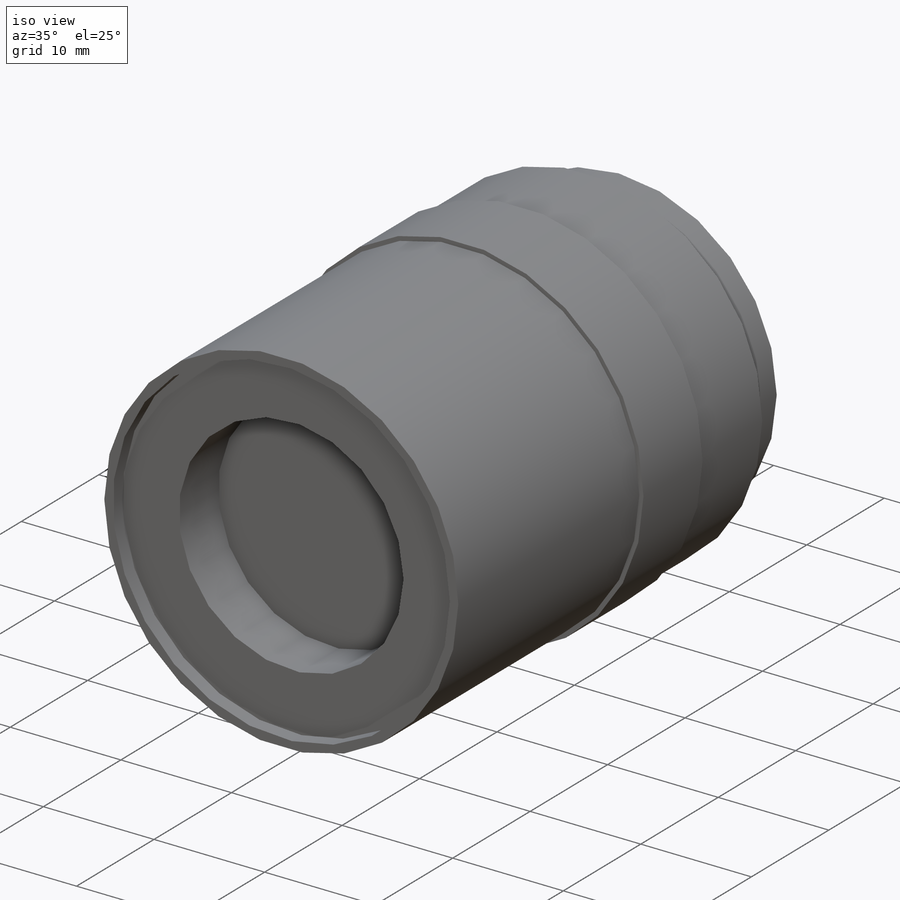
[diagram: iso view]
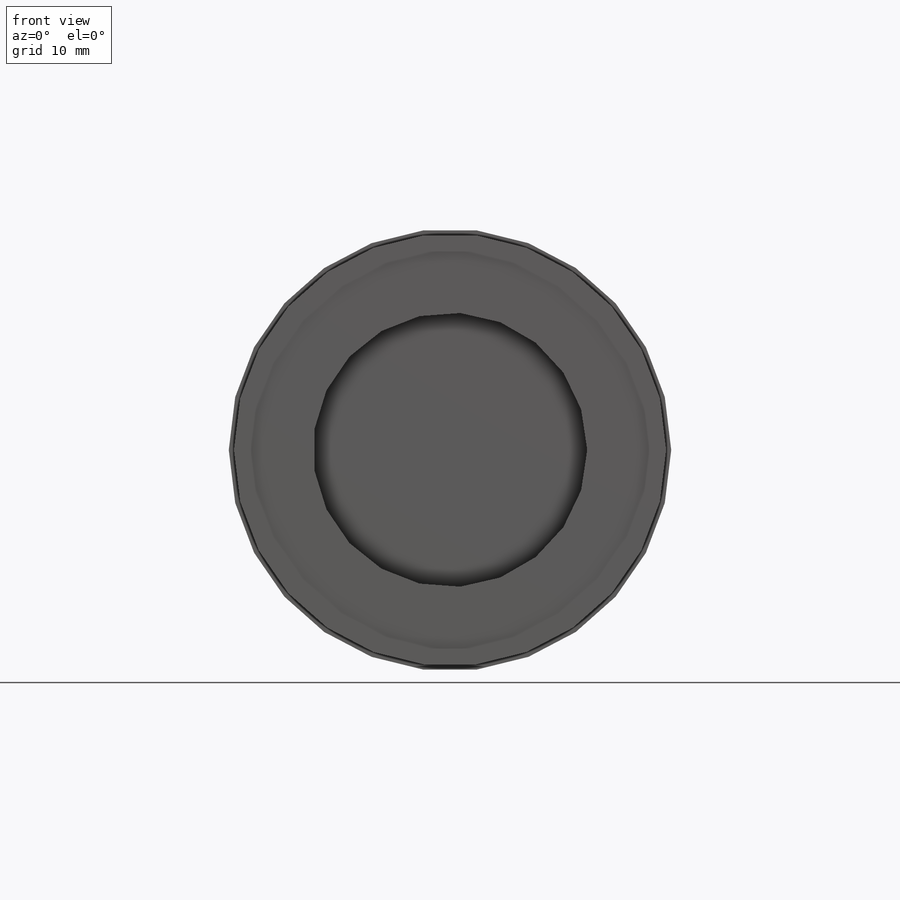
[diagram: front view]
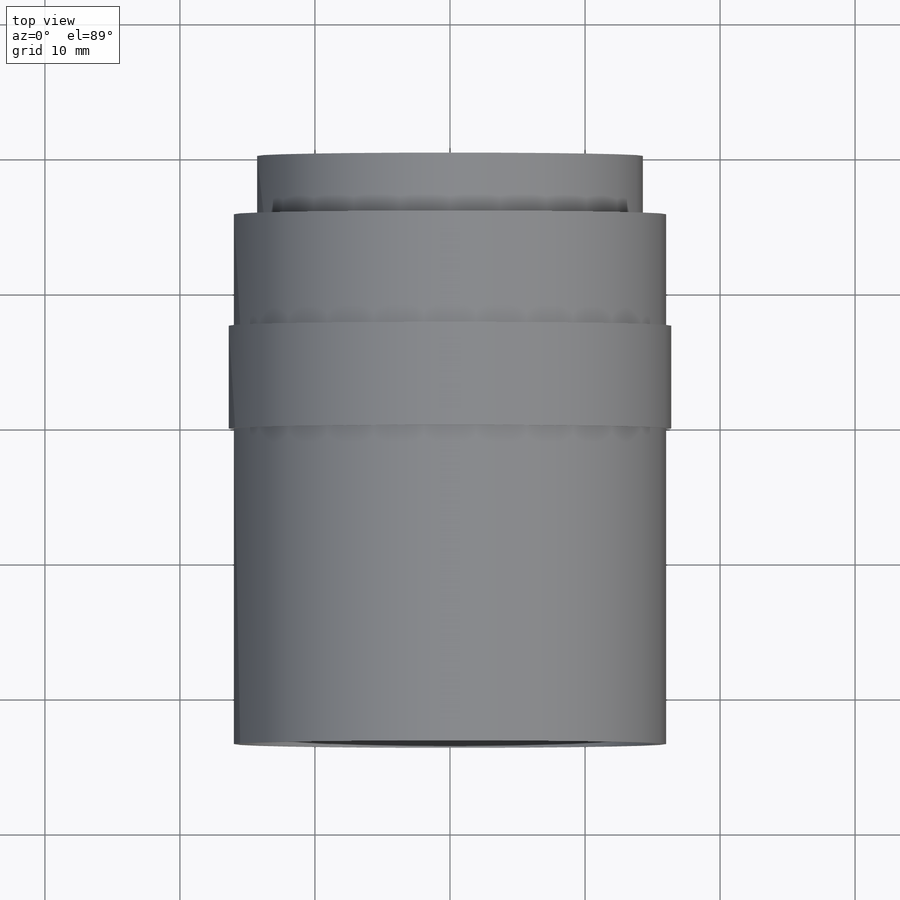
[diagram: top view]
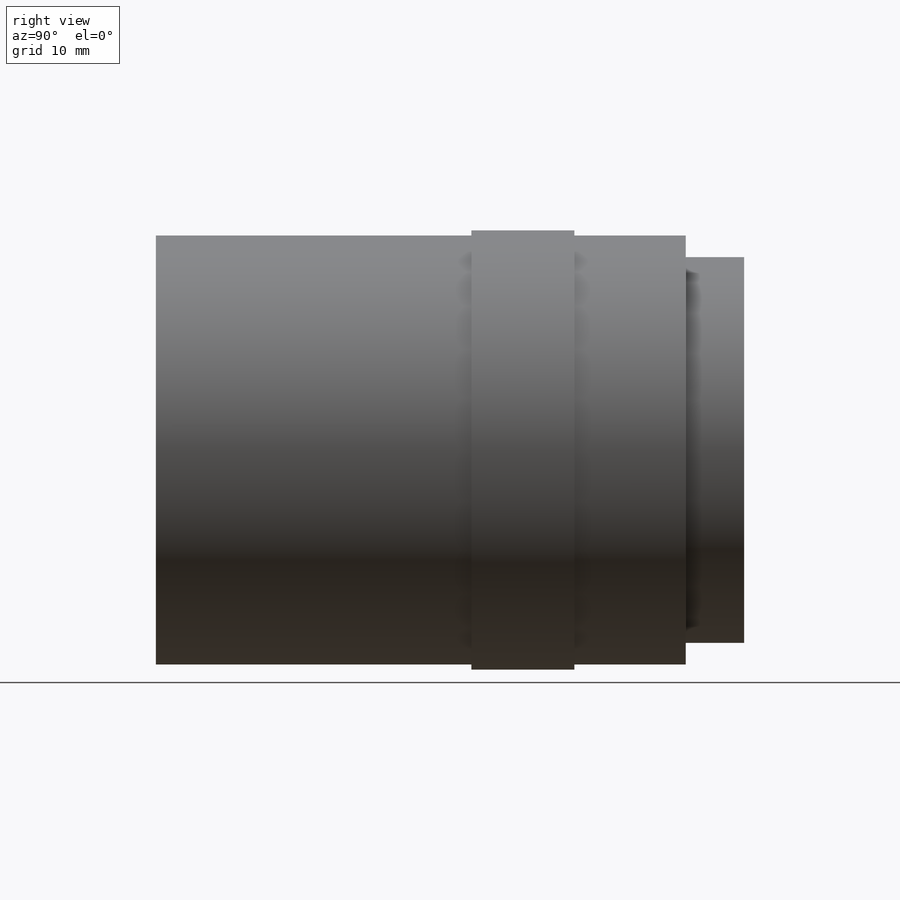
[diagram: right view]
SOLIDWORKS PART (.sldprt)
format: sldprt  version: not decoded by parser v0  size: 154,624 bytes
history: native  units: mm
features: sketch x6, extrude x4, cut_extrude x2, material x1 (+11 scaffold rows collapsed)
feature tree (24):
  scaffold x11  (default folders/planes/origin — collapsed)
  material  "1060 Alloy"
  sketch  "Sketch1"  dims[D1=21.59mm]
  extrude  "Extrude1"  Depth=4.318mm
  sketch  "Sketch2"  dims[D1=~16.170102mm]
  extrude  "Extrude2"  Depth=8.255mm
  sketch  "Sketch3"  dims[D1=~16.629561mm]
  extrude  "Extrude3"  Depth=7.62mm
  sketch  "Sketch4"  dims[D1=~14.962455mm]
  extrude  "Extrude4"  Depth=23.368mm
  sketch  "Sketch5"  dims[D1=~15.109355mm]
  cut_extrude  "Cut-Extrude1"  Depth=1.27mm
  sketch  "Sketch6"  dims[D1=~6.533883mm]
  cut_extrude  "Cut-Extrude2"  Depth=5.08mm
decode coverage: 12 of 12 modeling features carry decoded parameters
note: ~ marks probable driven/reference dimensions
note: suppression state not decoded; provenance and decode notes live in map.json
